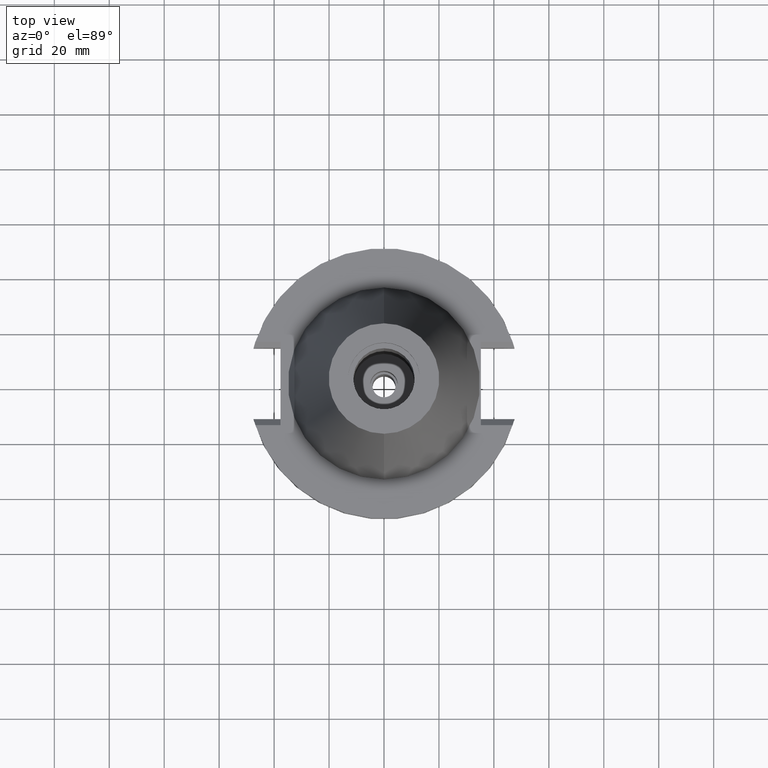
[diagram: clean part render]
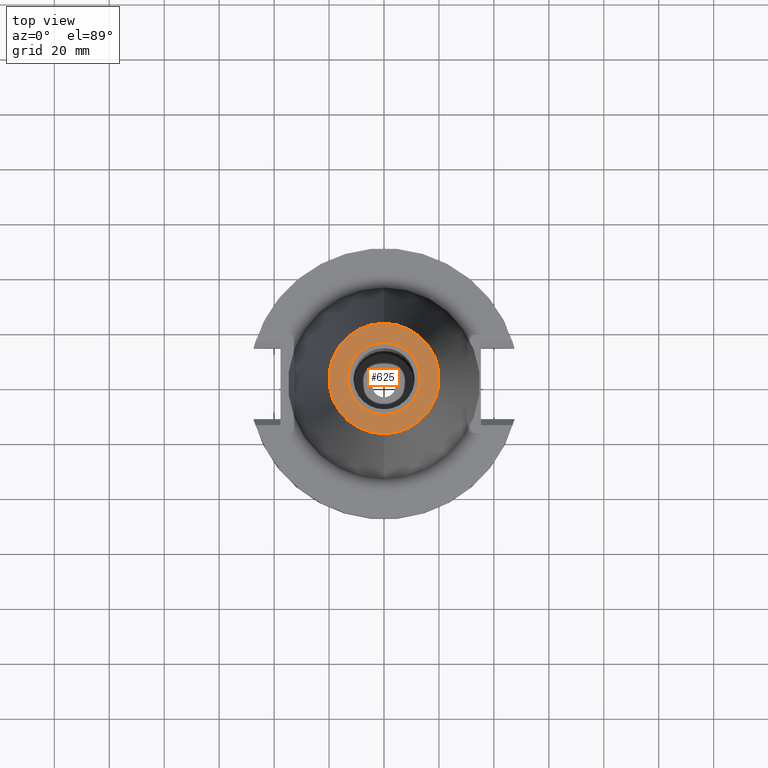
[diagram: same view with one face highlighted and labeled with its STEP entity id]
A machine part, top view. The second image highlights one B-rep face of the part: STEP entity #625.
In plain terms, the highlighted planar face has unit normal (0, 0, -1).
Its self-contained STEP definition (entity closure, byte-faithful):
#170 = ORIENTED_EDGE ( 'NONE', *, *, #3258, .F. ) ;
#190 = ORIENTED_EDGE ( 'NONE', *, *, #1483, .F. ) ;
#291 = CARTESIAN_POINT ( 'NONE',  ( 0.0000000000000000000, 13.11500000000000021, 101.5999999999999943 ) ) ;
#307 = VERTEX_POINT ( 'NONE', #291 ) ;
#487 = EDGE_CURVE ( 'NONE', #2948, #307, #1750, .T. ) ;
#563 = ORIENTED_EDGE ( 'NONE', *, *, #809, .F. ) ;
#625 = ADVANCED_FACE ( 'NONE', ( #949, #2498 ), #1963, .F. ) ;
#809 = EDGE_CURVE ( 'NONE', #969, #2576, #841, .T. ) ;
#834 = EDGE_LOOP ( 'NONE', ( #190, #1823 ) ) ;
#841 = CIRCLE ( 'NONE', #2717, 20.10832422388000040 ) ;
#895 = CARTESIAN_POINT ( 'NONE',  ( 0.0000000000000000000, 2.603354165626999772E-14, 101.5999999999999943 ) ) ;
#949 = FACE_OUTER_BOUND ( 'NONE', #1397, .T. ) ;
#969 = VERTEX_POINT ( 'NONE', #1630 ) ;
#1114 = DIRECTION ( 'NONE',  ( 0.0000000000000000000, 0.0000000000000000000, 1.000000000000000000 ) ) ;
#1316 = AXIS2_PLACEMENT_3D ( 'NONE', #2995, #2257, #1406 ) ;
#1397 = EDGE_LOOP ( 'NONE', ( #563, #170 ) ) ;
#1406 = DIRECTION ( 'NONE',  ( 0.0000000000000000000, -1.000000000000000000, 0.0000000000000000000 ) ) ;
#1477 = AXIS2_PLACEMENT_3D ( 'NONE', #895, #1114, #2632 ) ;
#1483 = EDGE_CURVE ( 'NONE', #307, #2948, #1565, .T. ) ;
#1565 = CIRCLE ( 'NONE', #2421, 13.11500000000000021 ) ;
#1570 = CARTESIAN_POINT ( 'NONE',  ( 0.0000000000000000000, 1.846767373113999857E-14, 101.5999999999999943 ) ) ;
#1630 = CARTESIAN_POINT ( 'NONE',  ( 0.0000000000000000000, 20.10832422388000040, 101.5999999999999943 ) ) ;
#1668 = DIRECTION ( 'NONE',  ( 0.0000000000000000000, 0.0000000000000000000, 1.000000000000000000 ) ) ;
#1677 = AXIS2_PLACEMENT_3D ( 'NONE', #2934, #1938, #2712 ) ;
#1750 = CIRCLE ( 'NONE', #1477, 13.11500000000000021 ) ;
#1823 = ORIENTED_EDGE ( 'NONE', *, *, #487, .F. ) ;
#1938 = DIRECTION ( 'NONE',  ( 0.0000000000000000000, 0.0000000000000000000, -1.000000000000000000 ) ) ;
#1948 = CIRCLE ( 'NONE', #1677, 20.10832422388000040 ) ;
#1963 = PLANE ( 'NONE',  #1316 ) ;
#2084 = CARTESIAN_POINT ( 'NONE',  ( 0.0000000000000000000, 2.603354165626999772E-14, 101.5999999999999943 ) ) ;
#2164 = DIRECTION ( 'NONE',  ( 0.0000000000000000000, 1.000000000000000000, 0.0000000000000000000 ) ) ;
#2241 = CARTESIAN_POINT ( 'NONE',  ( 0.0000000000000000000, -20.10832422388000040, 101.5999999999999943 ) ) ;
#2257 = DIRECTION ( 'NONE',  ( 0.0000000000000000000, 0.0000000000000000000, -1.000000000000000000 ) ) ;
#2275 = DIRECTION ( 'NONE',  ( 0.0000000000000000000, 0.0000000000000000000, -1.000000000000000000 ) ) ;
#2421 = AXIS2_PLACEMENT_3D ( 'NONE', #2084, #1668, #2164 ) ;
#2498 = FACE_BOUND ( 'NONE', #834, .T. ) ;
#2563 = CARTESIAN_POINT ( 'NONE',  ( 0.0000000000000000000, -13.11500000000000021, 101.5999999999999943 ) ) ;
#2576 = VERTEX_POINT ( 'NONE', #2241 ) ;
#2632 = DIRECTION ( 'NONE',  ( 0.0000000000000000000, -1.000000000000000000, 0.0000000000000000000 ) ) ;
#2712 = DIRECTION ( 'NONE',  ( 0.0000000000000000000, -1.000000000000000000, 0.0000000000000000000 ) ) ;
#2717 = AXIS2_PLACEMENT_3D ( 'NONE', #1570, #2275, #3320 ) ;
#2934 = CARTESIAN_POINT ( 'NONE',  ( 0.0000000000000000000, 1.846767373113999857E-14, 101.5999999999999943 ) ) ;
#2948 = VERTEX_POINT ( 'NONE', #2563 ) ;
#2995 = CARTESIAN_POINT ( 'NONE',  ( 0.0000000000000000000, 2.468887947081000065E-14, 101.5999999999999943 ) ) ;
#3258 = EDGE_CURVE ( 'NONE', #2576, #969, #1948, .T. ) ;
#3320 = DIRECTION ( 'NONE',  ( 0.0000000000000000000, 1.000000000000000000, 0.0000000000000000000 ) ) ;